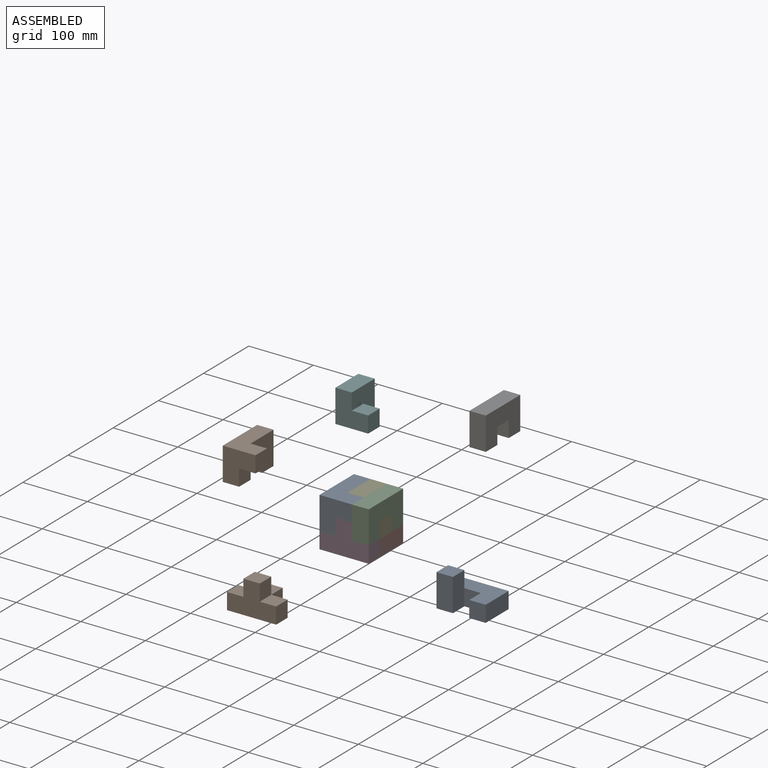
[diagram: assembled view]
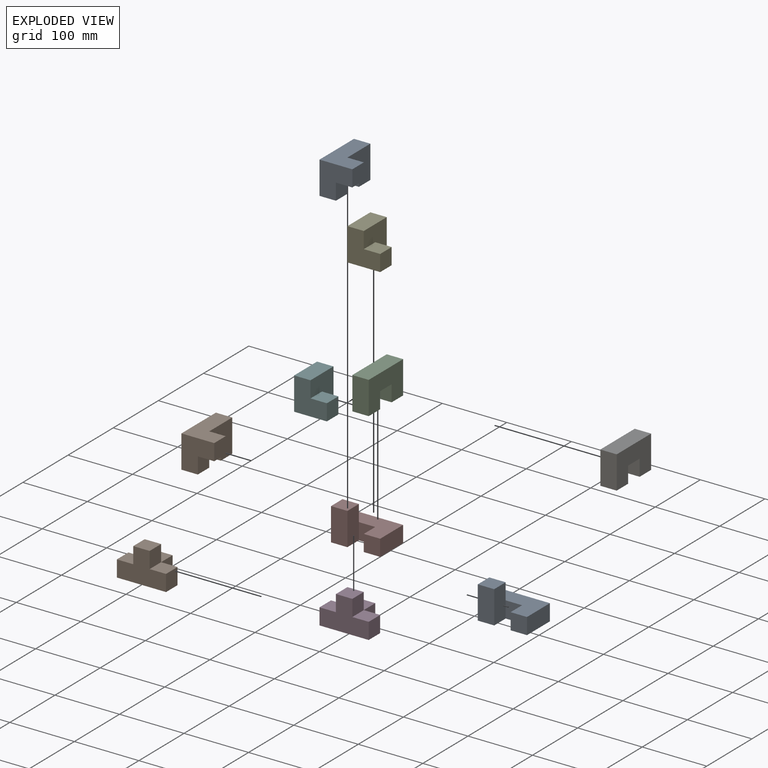
[diagram: exploded view]
GUIDED TOUR — MATED ASSEMBLY (Onshape document b83638dbb1ead9b3915cd865, AutoMate assembly b83638dbb1ead9b3915cd865_62fa5bdd0d1fef574d2ae65a_17d35a846d74b844c193dc2c_default)

This assembly has 10 components, labeled P0..P9 below (a component is one placed occurrence of a part; the same part can appear more than once), held together by 4 mates. A mate is a constraint between two components; its type names the relative motion it leaves free:
  FASTENED — locks the two components together rigidly (no relative motion).
Axis/direction vectors are unit vectors and 'through' points are millimeter coordinates, both in the assembly's world frame.

MATES
  1. FASTENED "Fastened 4": P4 <-> P7, direction (0.000, 0.000, -1.000) through (41.10, -124.55, -43.02) mm
  2. FASTENED "Fastened 3": P2 <-> P3, direction (0.000, 0.000, -1.000) through (28.40, -137.25, -43.02) mm
  3. FASTENED "Fastened 2": P0 <-> P7, direction (0.000, 0.000, -1.000) through (-22.40, -111.85, -17.62) mm
  4. FASTENED "Fastened 1": P7 <-> P3, direction (0.000, -1.000, 0.000) through (3.00, -99.15, -55.72) mm

ASSEMBLY ORDER
  1. P7 — the base component [order heuristic]
  2. P3 [order verified]
  3. P4 — core [order heuristic]
  4. P2 — core [order heuristic]
  5. P0 — core [order heuristic]
  6. P9 [order verified]
  7. P8 [order verified]
  8. P5 [order verified]
  9. P6 [order verified]
  10. P1 [order verified]
Order-tag legend:
  [order verified] — this step's position reverses a verified removal order: the component was checked to insert without passing through the ones already placed.
  [order heuristic] — the first 4 components form the assembly's core: parts whose collision-free extraction could not be verified, listed in mate-graph order.

Of the 10 components, 8 carry the full construction recipe — the FeatureScript program that regenerates the part's solid from scratch; the rest are supplied as boundary geometry only.
Each toured component is shown spotlighted twice — in the assembled view, then in the exploded view, where a leader line traces a displaced component back to its assembled socket (saturated green if recipe-attached, orange if geometry-only; every other component desaturated gray) — followed by its recipe or geometry summary and the mates that hold it.
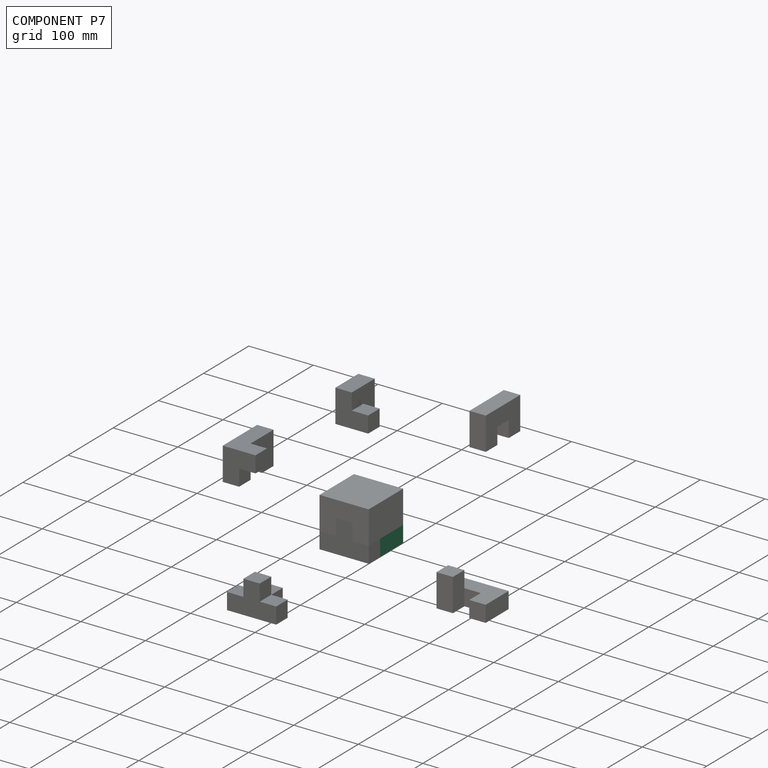
[diagram: component P7 — assembled]
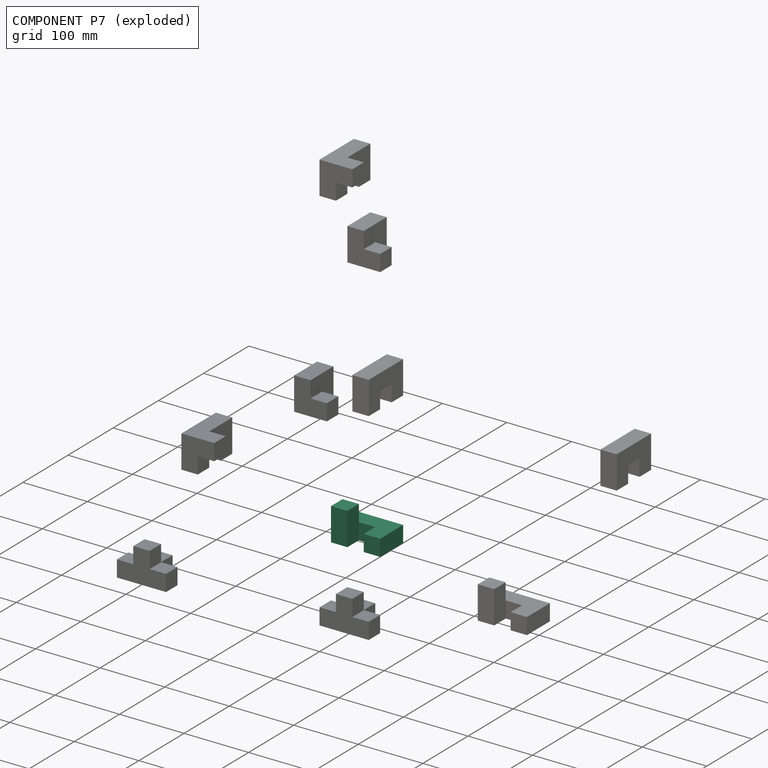
[diagram: component P7 — exploded]
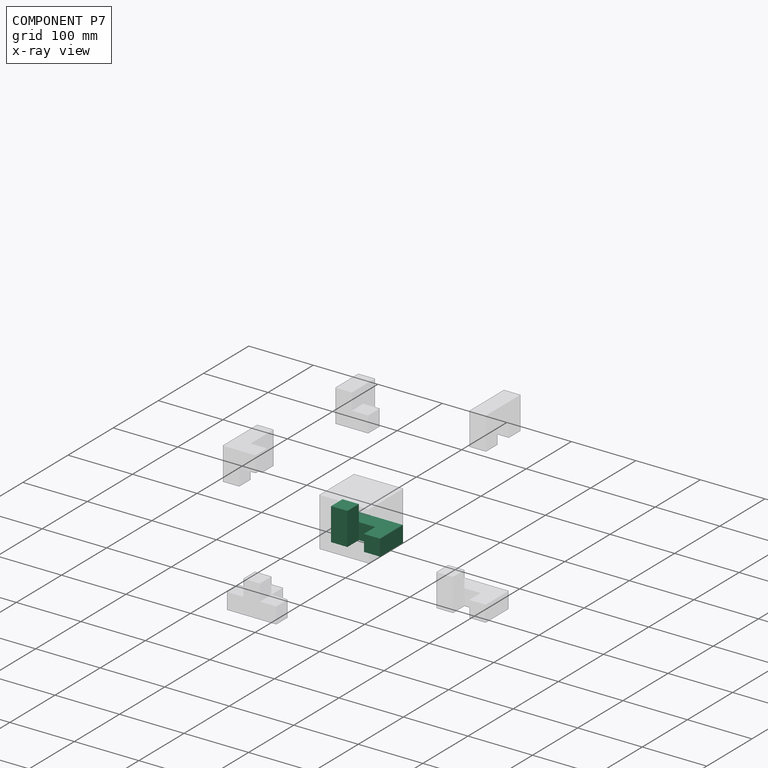
[diagram: component P7 — x-ray view]
COMPONENT P7 — recipe-attached (CADFS 00277339, mesh-verified: the recipe's output STEP matches this component's geometry to below the mesh-comparison resolution (tessellation chordal tolerance ~0.157 mm)).
Held by: FASTENED mate "Fastened 4" to P4; FASTENED mate "Fastened 2" to P0; FASTENED mate "Fastened 1" to P3.
Construction recipe (FeatureScript — the CAD program that rebuilds this solid; sketch coordinates are in the units given by the * unit suffixes, e.g. mm):

FeatureScript 1511;
import(path : "onshape/std/geometry.fs", version : "1511.0");
import(path : "onshape/std/common.fs", version : "1511.0");
const mm = millimeter;
const VERTEX = EntityType.VERTEX;
const EDGE = EntityType.EDGE;
const FACE = EntityType.FACE;
const BODY = EntityType.BODY;
function v(x, y){return vector(x, y);}
function OD(order){return orderDisambiguation(order);}
function OSD(set){return originalSetDisambiguation(set);}
function TD(topology){return topologyDisambiguation(topology);}
function TDD(query){return trueDependencyDisambiguation(query);}
function sQuery(a, b, c) {return sketchEntityQuery(a, b, c);}

annotation { "Feature Type Name" : "Feature", "Feature Type Description" : "" }
export const myFeature = defineFeature(function(context is Context, id is Id, definition is map)
    precondition{}
    {
        {
            var Q0;
            Q0=qCreatedBy(makeId("Front.planeOp"),FACE);
            var sketch = newSketch(context, id + "F0", { "sketchPlane" : qUnion([Q0])});
            skLineSegment(sketch, "E0", {"start": v(-39.31, -20.07) * mm, "end": v(-13.91, -20.07) * mm});
            skLineSegment(sketch, "E1", {"start": v(-13.91, -20.07) * mm, "end": v(11.49, -20.07) * mm});
            skLineSegment(sketch, "E2", {"start": v(11.49, -20.07) * mm, "end": v(36.89, -20.07) * mm});
            skLineSegment(sketch, "E3", {"start": v(36.89, -20.07) * mm, "end": v(36.89, 5.33) * mm});
            skLineSegment(sketch, "E4", {"start": v(36.89, 5.33) * mm, "end": v(11.49, 5.33) * mm});
            skLineSegment(sketch, "E5", {"start": v(11.49, 5.33) * mm, "end": v(-13.91, 5.33) * mm});
            skLineSegment(sketch, "E6", {"start": v(-13.91, 5.33) * mm, "end": v(-39.31, 5.33) * mm});
            skLineSegment(sketch, "E7", {"start": v(-39.31, 5.33) * mm, "end": v(-39.31, -20.07) * mm});
            skLineSegment(sketch, "E8", {"start": v(-13.91, 5.33) * mm, "end": v(-13.91, -20.07) * mm});
            skLineSegment(sketch, "E9", {"start": v(11.49, 5.33) * mm, "end": v(11.49, -20.07) * mm});
            skSolve(sketch);
        }
        {
            var Q0;
            Q0=makeQuery(id+"F0.imprint","IMPRINT",FACE,{"disambiguationData":[TD([[makeQuery(id+"F0.imprint","IMPRINT",EDGE,{"derivedFrom":sQuery(id+"F0.wireOp",EDGE,"E1")}),1.0]])]});
            extrude(context, id + "F1", {"entities" : qUnion([Q0]), "depth" : 25.4 * mm});
        }
        {
            var Q0;
            Q0=makeQuery(id+"F0.imprint","IMPRINT",FACE,{"disambiguationData":[TD([[makeQuery(id+"F0.imprint","IMPRINT",EDGE,{"derivedFrom":sQuery(id+"F0.wireOp",EDGE,"E0")}),1.0]])]});
            var Q1;
            Q1=makeQuery(id+"F0.imprint","IMPRINT",FACE,{"disambiguationData":[TD([[makeQuery(id+"F0.imprint","IMPRINT",EDGE,{"derivedFrom":sQuery(id+"F0.wireOp",EDGE,"E2")}),1.0]])]});
            extrude(context, id + "F2", {"entities" : qUnion([Q0, Q1]), "operationType" : NewBodyOperationType.ADD, "depth" : 50.8 * mm});
        }
        {
            var Q0;
            Q0=makeQuery(id+"F2.boolean.opBoolean","MERGE",FACE,{"derivedFrom":[makeQuery(id+"F1.opExtrude","SWEPT_FACE",FACE,{"disambiguationData":[OSD([sQuery(id+"F0.wireOp",EDGE,"E5")])]}),makeQuery(id+"F2.opExtrude","SWEPT_FACE",FACE,{"disambiguationData":[OSD([sQuery(id+"F0.wireOp",EDGE,"E4")])]}),makeQuery(id+"F2.opExtrude","SWEPT_FACE",FACE,{"disambiguationData":[OSD([sQuery(id+"F0.wireOp",EDGE,"E6")])]})]});
            var sketch = newSketch(context, id + "F3", { "sketchPlane" : qUnion([Q0])});
            skLineSegment(sketch, "E10.bottom", {"start": v(-13.91, -50.8) * mm, "end": v(-39.31, -50.8) * mm});
            skLineSegment(sketch, "E10.top", {"start": v(-13.91, -25.4) * mm, "end": v(-39.31, -25.4) * mm});
            skLineSegment(sketch, "E10.left", {"start": v(-13.91, -50.8) * mm, "end": v(-13.91, -25.4) * mm});
            skLineSegment(sketch, "E10.right", {"start": v(-39.31, -50.8) * mm, "end": v(-39.31, -25.4) * mm});
            skSolve(sketch);
        }
        {
            var Q0;
            Q0 = qSketchRegion(id + "F3", true);
            extrude(context, id + "F4", {"entities" : qUnion([Q0]), "operationType" : NewBodyOperationType.ADD, "depth" : 25.4 * mm});
        }
    });
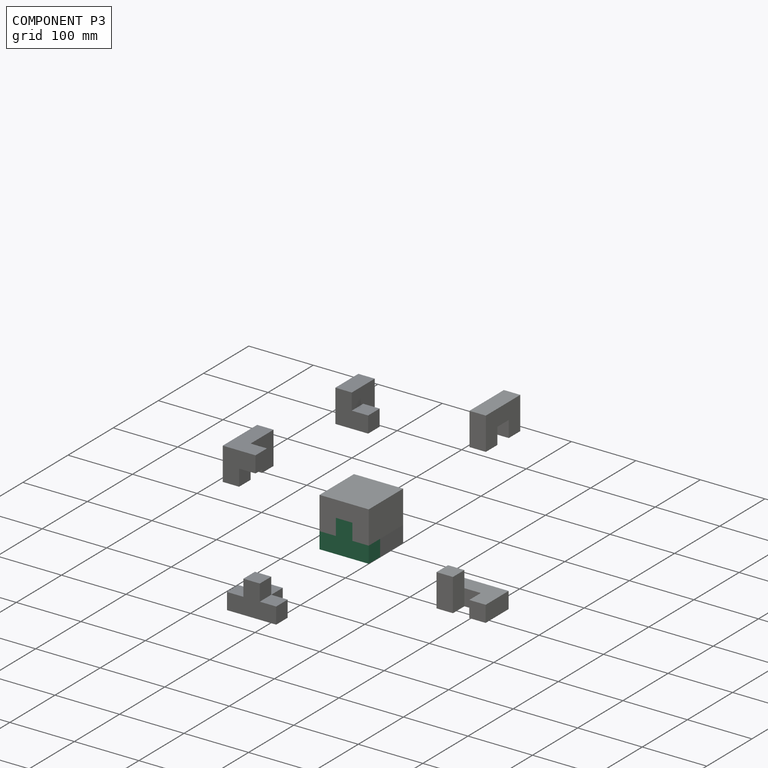
[diagram: component P3 — assembled]
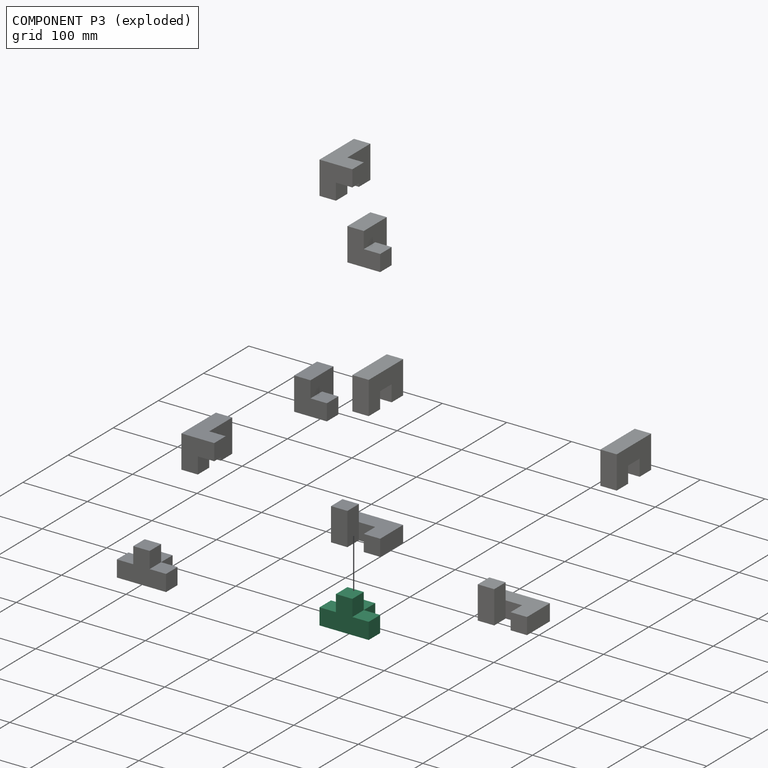
[diagram: component P3 — exploded]
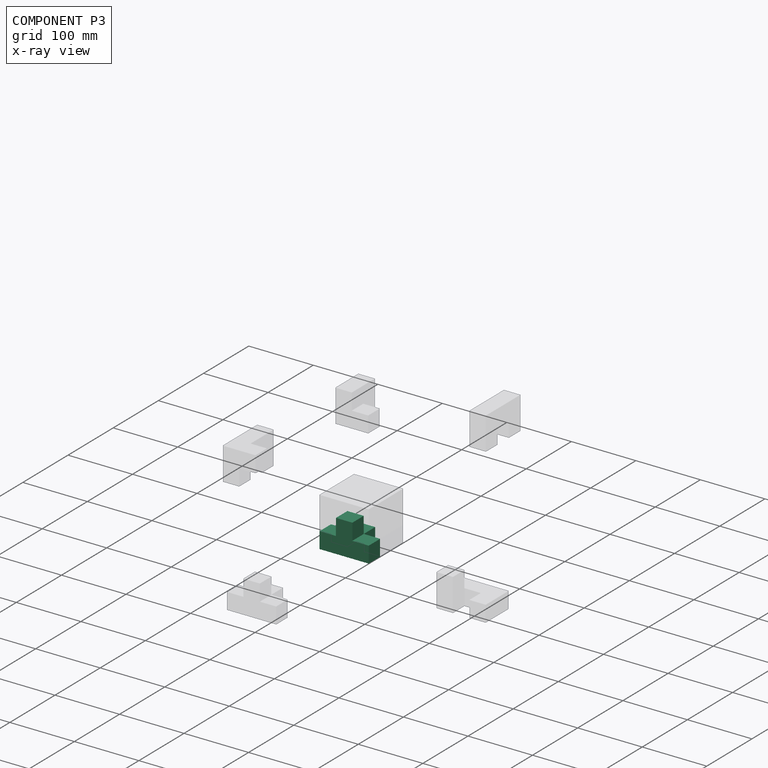
[diagram: component P3 — x-ray view]
COMPONENT P3 — recipe-attached (CADFS 00277338, mesh-verified: the recipe's output STEP matches this component's geometry to below the mesh-comparison resolution (tessellation chordal tolerance ~0.157 mm)).
Held by: FASTENED mate "Fastened 3" to P2; FASTENED mate "Fastened 1" to P7.
Construction recipe (FeatureScript — the CAD program that rebuilds this solid; sketch coordinates are in the units given by the * unit suffixes, e.g. mm):

FeatureScript 1511;
import(path : "onshape/std/geometry.fs", version : "1511.0");
import(path : "onshape/std/common.fs", version : "1511.0");
const mm = millimeter;
const VERTEX = EntityType.VERTEX;
const EDGE = EntityType.EDGE;
const FACE = EntityType.FACE;
const BODY = EntityType.BODY;
function v(x, y){return vector(x, y);}
function OD(order){return orderDisambiguation(order);}
function OSD(set){return originalSetDisambiguation(set);}
function TD(topology){return topologyDisambiguation(topology);}
function TDD(query){return trueDependencyDisambiguation(query);}
function sQuery(a, b, c) {return sketchEntityQuery(a, b, c);}

annotation { "Feature Type Name" : "Feature", "Feature Type Description" : "" }
export const myFeature = defineFeature(function(context is Context, id is Id, definition is map)
    precondition{}
    {
        {
            var Q0;
            Q0=qCreatedBy(makeId("Front.planeOp"),FACE);
            var sketch = newSketch(context, id + "F0", { "sketchPlane" : qUnion([Q0])});
            skLineSegment(sketch, "E0", {"start": v(-40.88, -20.26) * mm, "end": v(-15.48, -20.26) * mm});
            skLineSegment(sketch, "E1", {"start": v(-15.48, -20.26) * mm, "end": v(9.92, -20.26) * mm});
            skLineSegment(sketch, "E2", {"start": v(9.92, -20.26) * mm, "end": v(35.32, -20.26) * mm});
            skLineSegment(sketch, "E3", {"start": v(35.32, -20.26) * mm, "end": v(35.32, 5.14) * mm});
            skLineSegment(sketch, "E4", {"start": v(35.32, 5.14) * mm, "end": v(9.92, 5.14) * mm});
            skLineSegment(sketch, "E5", {"start": v(9.92, 5.14) * mm, "end": v(-15.48, 5.14) * mm});
            skLineSegment(sketch, "E6", {"start": v(-15.48, 5.14) * mm, "end": v(-40.88, 5.14) * mm});
            skLineSegment(sketch, "E7", {"start": v(-40.88, 5.14) * mm, "end": v(-40.88, -20.26) * mm});
            skLineSegment(sketch, "E8", {"start": v(-15.48, 5.14) * mm, "end": v(-15.48, 30.54) * mm});
            skLineSegment(sketch, "E9", {"start": v(-15.48, 30.54) * mm, "end": v(9.92, 30.54) * mm});
            skLineSegment(sketch, "E10", {"start": v(9.92, 30.54) * mm, "end": v(9.92, 5.14) * mm});
            skLineSegment(sketch, "E11", {"start": v(9.92, 5.14) * mm, "end": v(9.92, -20.26) * mm});
            skLineSegment(sketch, "E12", {"start": v(-15.48, 5.14) * mm, "end": v(-15.48, -20.26) * mm});
            skSolve(sketch);
        }
        {
            var Q0;
            Q0=makeQuery(id+"F0.imprint","IMPRINT",FACE,{"disambiguationData":[TD([[makeQuery(id+"F0.imprint","IMPRINT",EDGE,{"derivedFrom":sQuery(id+"F0.wireOp",EDGE,"E1")}),1.0]])]});
            extrude(context, id + "F1", {"entities" : qUnion([Q0]), "depth" : 50.8 * mm});
        }
        {
            var Q0;
            Q0=makeQuery(id+"F0.imprint","IMPRINT",FACE,{"disambiguationData":[TD([[makeQuery(id+"F0.imprint","IMPRINT",EDGE,{"derivedFrom":sQuery(id+"F0.wireOp",EDGE,"E0")}),1.0]])]});
            var Q1;
            Q1=makeQuery(id+"F0.imprint","IMPRINT",FACE,{"disambiguationData":[TD([[makeQuery(id+"F0.imprint","IMPRINT",EDGE,{"derivedFrom":sQuery(id+"F0.wireOp",EDGE,"E5")}),-1.0]])]});
            var Q2;
            Q2=makeQuery(id+"F0.imprint","IMPRINT",FACE,{"disambiguationData":[TD([[makeQuery(id+"F0.imprint","IMPRINT",EDGE,{"derivedFrom":sQuery(id+"F0.wireOp",EDGE,"E2")}),1.0]])]});
            extrude(context, id + "F2", {"entities" : qUnion([Q0, Q1, Q2]), "operationType" : NewBodyOperationType.ADD, "depth" : 25.4 * mm});
        }
    });
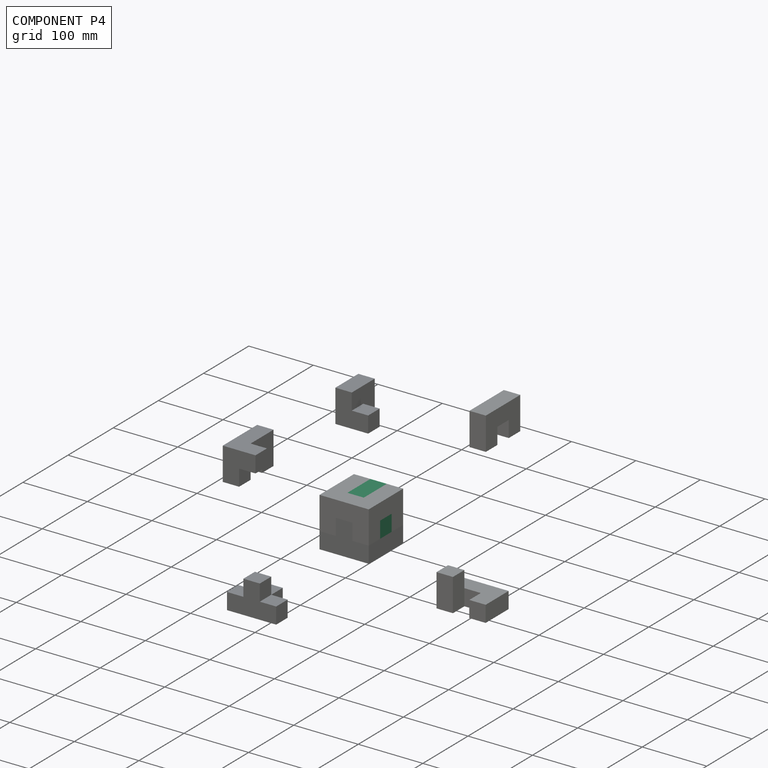
[diagram: component P4 — assembled]
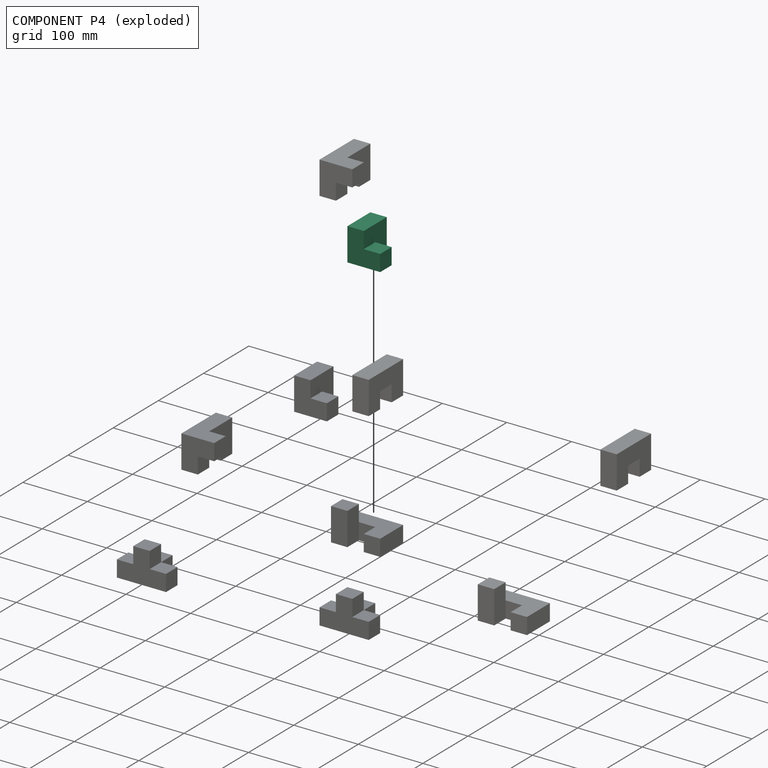
[diagram: component P4 — exploded]
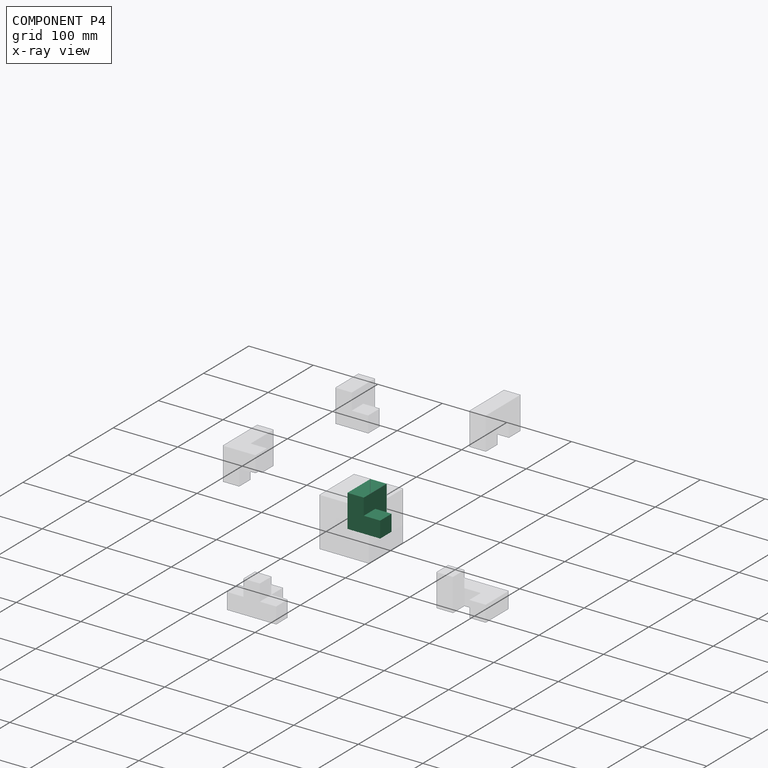
[diagram: component P4 — x-ray view]
COMPONENT P4 — recipe-attached (CADFS 00277341, mesh-verified: the recipe's output STEP matches this component's geometry to below the mesh-comparison resolution (tessellation chordal tolerance ~0.132 mm)).
Held by: FASTENED mate "Fastened 4" to P7.
Construction recipe (FeatureScript — the CAD program that rebuilds this solid; sketch coordinates are in the units given by the * unit suffixes, e.g. mm):

FeatureScript 1511;
import(path : "onshape/std/geometry.fs", version : "1511.0");
import(path : "onshape/std/common.fs", version : "1511.0");
const mm = millimeter;
const VERTEX = EntityType.VERTEX;
const EDGE = EntityType.EDGE;
const FACE = EntityType.FACE;
const BODY = EntityType.BODY;
function v(x, y){return vector(x, y);}
function OD(order){return orderDisambiguation(order);}
function OSD(set){return originalSetDisambiguation(set);}
function TD(topology){return topologyDisambiguation(topology);}
function TDD(query){return trueDependencyDisambiguation(query);}
function sQuery(a, b, c) {return sketchEntityQuery(a, b, c);}

annotation { "Feature Type Name" : "Feature", "Feature Type Description" : "" }
export const myFeature = defineFeature(function(context is Context, id is Id, definition is map)
    precondition{}
    {
        {
            var Q0;
            Q0=qCreatedBy(makeId("Front.planeOp"),FACE);
            var sketch = newSketch(context, id + "F0", { "sketchPlane" : qUnion([Q0])});
            skLineSegment(sketch, "E0.bottom", {"start": v(-53.4, -45.15) * mm, "end": v(-28, -45.15) * mm});
            skLineSegment(sketch, "E0.top", {"start": v(-53.4, -70.55) * mm, "end": v(-28, -70.55) * mm});
            skLineSegment(sketch, "E0.left", {"start": v(-53.4, -45.15) * mm, "end": v(-53.4, -70.55) * mm});
            skLineSegment(sketch, "E0.right", {"start": v(-28, -45.15) * mm, "end": v(-28, -70.55) * mm});
            skSolve(sketch);
        }
        {
            var Q0;
            Q0 = qSketchRegion(id + "F0", true);
            extrude(context, id + "F1", {"entities" : qUnion([Q0]), "depth" : 50.8 * mm});
        }
        {
            var Q0;
            Q0=makeQuery(id+"F1.opExtrude","SWEPT_FACE",FACE,{"disambiguationData":[OSD([sQuery(id+"F0.wireOp",EDGE,"E0.bottom")])]});
            var sketch = newSketch(context, id + "F2", { "sketchPlane" : qUnion([Q0])});
            skLineSegment(sketch, "E1.bottom", {"start": v(-53.4, 0) * mm, "end": v(-28, 0) * mm});
            skLineSegment(sketch, "E1.top", {"start": v(-53.4, -25.4) * mm, "end": v(-28, -25.4) * mm});
            skLineSegment(sketch, "E1.left", {"start": v(-53.4, 0) * mm, "end": v(-53.4, -25.4) * mm});
            skLineSegment(sketch, "E1.right", {"start": v(-28, 0) * mm, "end": v(-28, -25.4) * mm});
            skSolve(sketch);
        }
        {
            var Q0;
            Q0 = qSketchRegion(id + "F2", true);
            extrude(context, id + "F3", {"entities" : qUnion([Q0]), "operationType" : NewBodyOperationType.ADD, "depth" : 25.4 * mm});
        }
        {
            var Q0;
            Q0=makeQuery(id+"F3.boolean.opBoolean","MERGE",FACE,{"derivedFrom":[makeQuery(id+"F1.opExtrude","SWEPT_FACE",FACE,{"disambiguationData":[OSD([sQuery(id+"F0.wireOp",EDGE,"E0.right")])]}),makeQuery(id+"F3.opExtrude","SWEPT_FACE",FACE,{"disambiguationData":[OSD([sQuery(id+"F2.wireOp",EDGE,"E1.right")])]})]});
            var sketch = newSketch(context, id + "F4", { "sketchPlane" : qUnion([Q0])});
            skLineSegment(sketch, "E2.bottom", {"start": v(-25.4, -19.75) * mm, "end": v(0, -19.75) * mm});
            skLineSegment(sketch, "E2.top", {"start": v(-25.4, -70.55) * mm, "end": v(0, -70.55) * mm});
            skLineSegment(sketch, "E2.left", {"start": v(-25.4, -19.75) * mm, "end": v(-25.4, -70.55) * mm});
            skLineSegment(sketch, "E2.right", {"start": v(0, -19.75) * mm, "end": v(0, -70.55) * mm});
            skSolve(sketch);
        }
        {
            var Q0;
            Q0 = qSketchRegion(id + "F4", true);
            extrude(context, id + "F5", {"entities" : qUnion([Q0]), "operationType" : NewBodyOperationType.ADD, "depth" : 25.4 * mm});
        }
    });
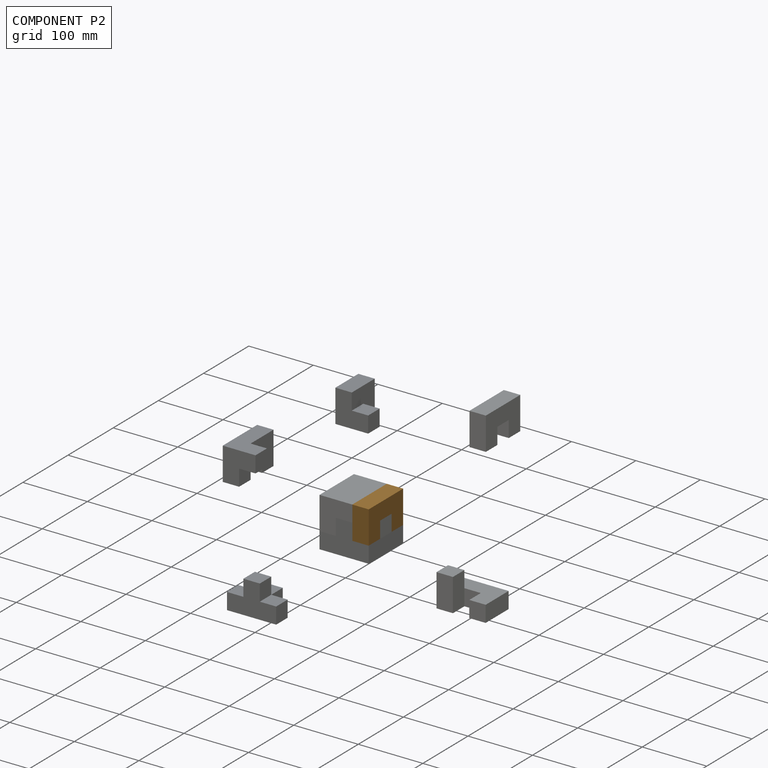
[diagram: component P2 — assembled]
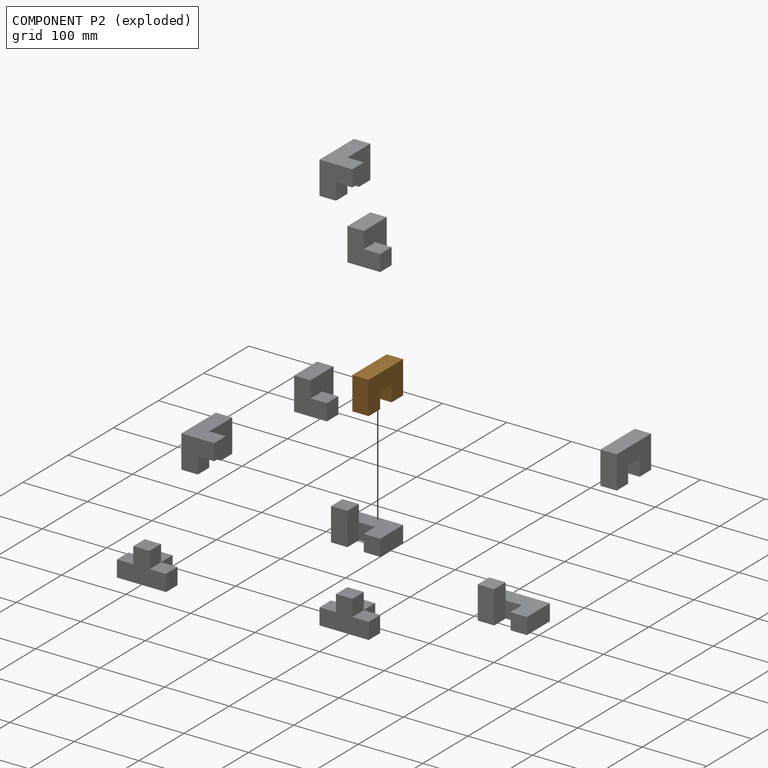
[diagram: component P2 — exploded]
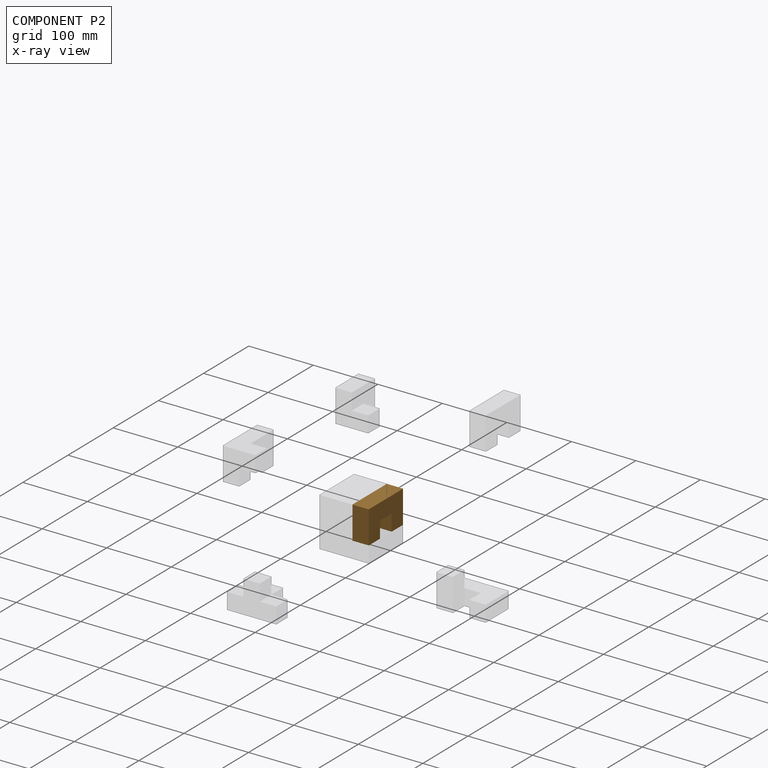
[diagram: component P2 — x-ray view]
COMPONENT P2 — geometry summary (no construction recipe available for this part):
  bounding box: 76.2 x 50.8 x 25.4 mm
  B-rep topology: 1 solid, 10 faces, 48 edges
  volume: 81935 mm^3 (83% of its bounding box)
  symmetry: 2-fold rotationally symmetric about the y axis; mirror-symmetric across its x mid-plane, z mid-plane
Held by: FASTENED mate "Fastened 3" to P3.
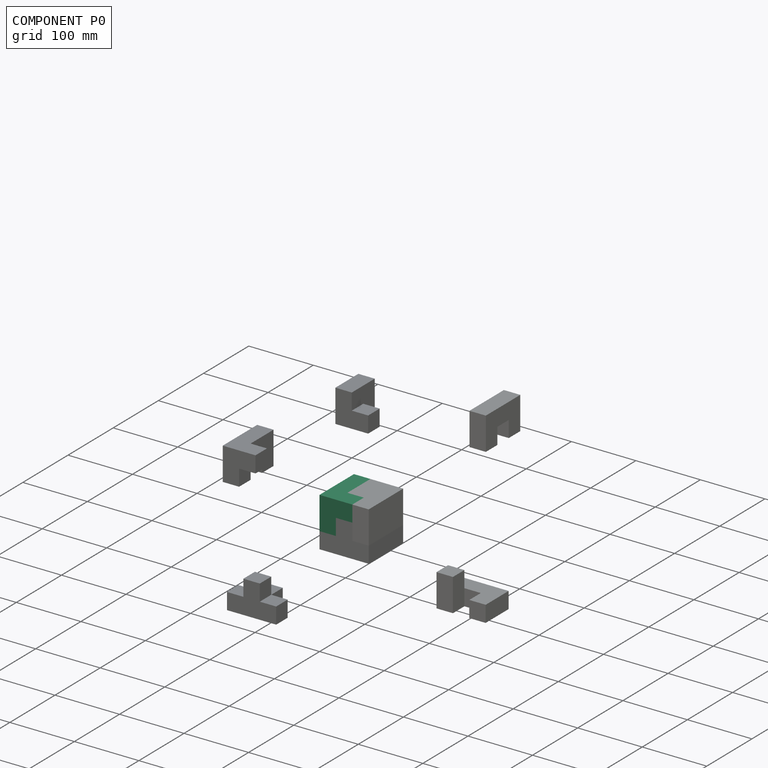
[diagram: component P0 — assembled]
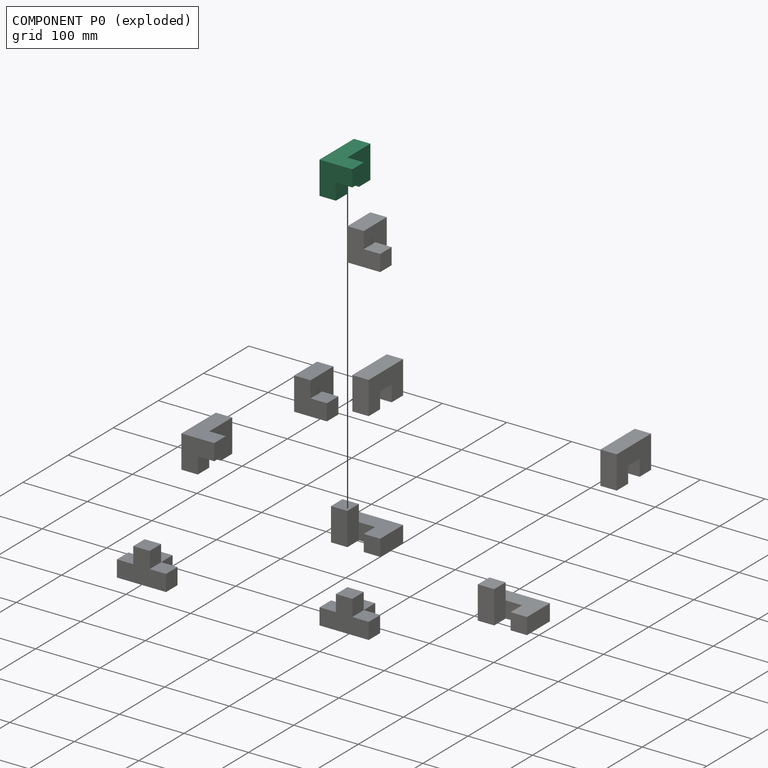
[diagram: component P0 — exploded]
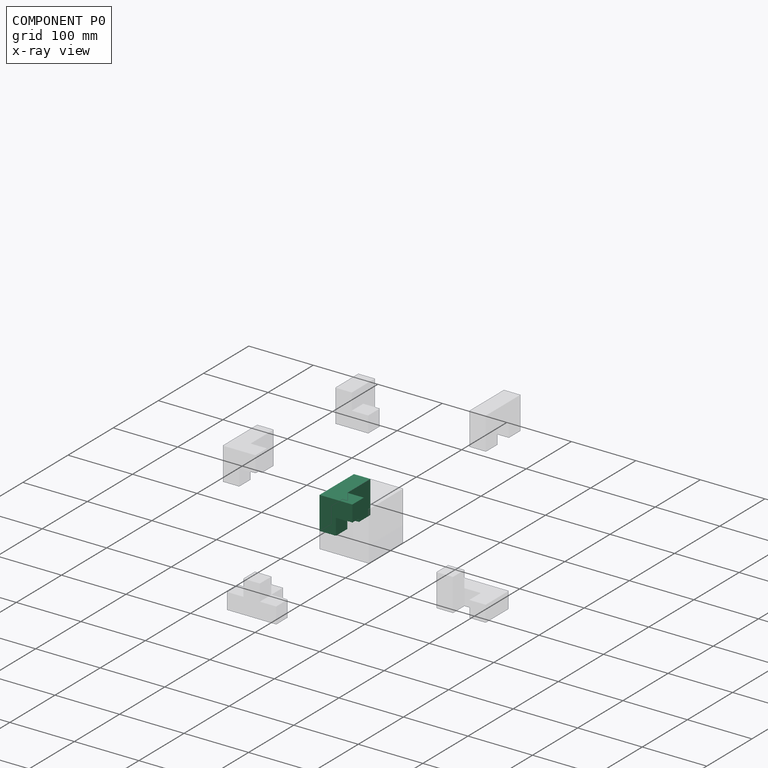
[diagram: component P0 — x-ray view]
COMPONENT P0 — recipe-attached (CADFS 00277340, mesh-verified: the recipe's output STEP matches this component's geometry to below the mesh-comparison resolution (tessellation chordal tolerance ~0.157 mm)).
Held by: FASTENED mate "Fastened 2" to P7.
Construction recipe (FeatureScript — the CAD program that rebuilds this solid; sketch coordinates are in the units given by the * unit suffixes, e.g. mm):

FeatureScript 1511;
import(path : "onshape/std/geometry.fs", version : "1511.0");
import(path : "onshape/std/common.fs", version : "1511.0");
const mm = millimeter;
const VERTEX = EntityType.VERTEX;
const EDGE = EntityType.EDGE;
const FACE = EntityType.FACE;
const BODY = EntityType.BODY;
function v(x, y){return vector(x, y);}
function OD(order){return orderDisambiguation(order);}
function OSD(set){return originalSetDisambiguation(set);}
function TD(topology){return topologyDisambiguation(topology);}
function TDD(query){return trueDependencyDisambiguation(query);}
function sQuery(a, b, c) {return sketchEntityQuery(a, b, c);}

annotation { "Feature Type Name" : "Feature", "Feature Type Description" : "" }
export const myFeature = defineFeature(function(context is Context, id is Id, definition is map)
    precondition{}
    {
        {
            var Q0;
            Q0=qCreatedBy(makeId("Front.planeOp"),FACE);
            var sketch = newSketch(context, id + "F0", { "sketchPlane" : qUnion([Q0])});
            skLineSegment(sketch, "E0", {"start": v(-40.4, -30.37) * mm, "end": v(-15, -30.37) * mm});
            skLineSegment(sketch, "E1", {"start": v(-15, -30.37) * mm, "end": v(10.4, -30.37) * mm});
            skLineSegment(sketch, "E2", {"start": v(10.4, -30.37) * mm, "end": v(35.8, -30.37) * mm});
            skLineSegment(sketch, "E3", {"start": v(35.8, -30.37) * mm, "end": v(35.8, -4.97) * mm});
            skLineSegment(sketch, "E4", {"start": v(35.8, -4.97) * mm, "end": v(10.4, -4.97) * mm});
            skLineSegment(sketch, "E5", {"start": v(10.4, -4.97) * mm, "end": v(-15, -4.97) * mm});
            skLineSegment(sketch, "E6", {"start": v(-15, -4.97) * mm, "end": v(-40.4, -4.97) * mm});
            skLineSegment(sketch, "E7", {"start": v(-40.4, -4.97) * mm, "end": v(-40.4, -30.37) * mm});
            skLineSegment(sketch, "E8", {"start": v(-40.4, -4.97) * mm, "end": v(-40.4, 20.43) * mm});
            skLineSegment(sketch, "E9", {"start": v(-40.4, 20.43) * mm, "end": v(-15, 20.43) * mm});
            skLineSegment(sketch, "E10", {"start": v(-15, 20.43) * mm, "end": v(-15, -4.97) * mm});
            skLineSegment(sketch, "E11", {"start": v(10.4, -4.97) * mm, "end": v(10.4, 20.43) * mm});
            skLineSegment(sketch, "E12", {"start": v(10.4, 20.43) * mm, "end": v(35.8, 20.43) * mm});
            skLineSegment(sketch, "E13", {"start": v(35.8, 20.43) * mm, "end": v(35.8, -4.97) * mm});
            skLineSegment(sketch, "E14", {"start": v(10.4, -4.97) * mm, "end": v(10.4, -30.37) * mm});
            skLineSegment(sketch, "E15", {"start": v(-15, -4.97) * mm, "end": v(-15, -30.37) * mm});
            skSolve(sketch);
        }
        {
            var Q0;
            Q0=makeQuery(id+"F0.imprint","IMPRINT",FACE,{"disambiguationData":[TD([[makeQuery(id+"F0.imprint","IMPRINT",EDGE,{"derivedFrom":sQuery(id+"F0.wireOp",EDGE,"E2")}),1.0]])]});
            extrude(context, id + "F1", {"entities" : qUnion([Q0]), "depth" : 50.8 * mm});
        }
        {
            var Q0;
            Q0=makeQuery(id+"F0.imprint","IMPRINT",FACE,{"disambiguationData":[TD([[makeQuery(id+"F0.imprint","IMPRINT",EDGE,{"derivedFrom":sQuery(id+"F0.wireOp",EDGE,"E4")}),-1.0]])]});
            var Q1;
            Q1=makeQuery(id+"F0.imprint","IMPRINT",FACE,{"disambiguationData":[TD([[makeQuery(id+"F0.imprint","IMPRINT",EDGE,{"derivedFrom":sQuery(id+"F0.wireOp",EDGE,"E1")}),1.0]])]});
            var Q2;
            Q2=makeQuery(id+"F0.imprint","IMPRINT",FACE,{"disambiguationData":[TD([[makeQuery(id+"F0.imprint","IMPRINT",EDGE,{"derivedFrom":sQuery(id+"F0.wireOp",EDGE,"E0")}),1.0]])]});
            var Q3;
            Q3=makeQuery(id+"F0.imprint","IMPRINT",FACE,{"disambiguationData":[TD([[makeQuery(id+"F0.imprint","IMPRINT",EDGE,{"derivedFrom":sQuery(id+"F0.wireOp",EDGE,"E6")}),-1.0]])]});
            extrude(context, id + "F2", {"entities" : qUnion([Q0, Q1, Q2, Q3]), "operationType" : NewBodyOperationType.ADD, "depth" : 25.4 * mm});
        }
    });
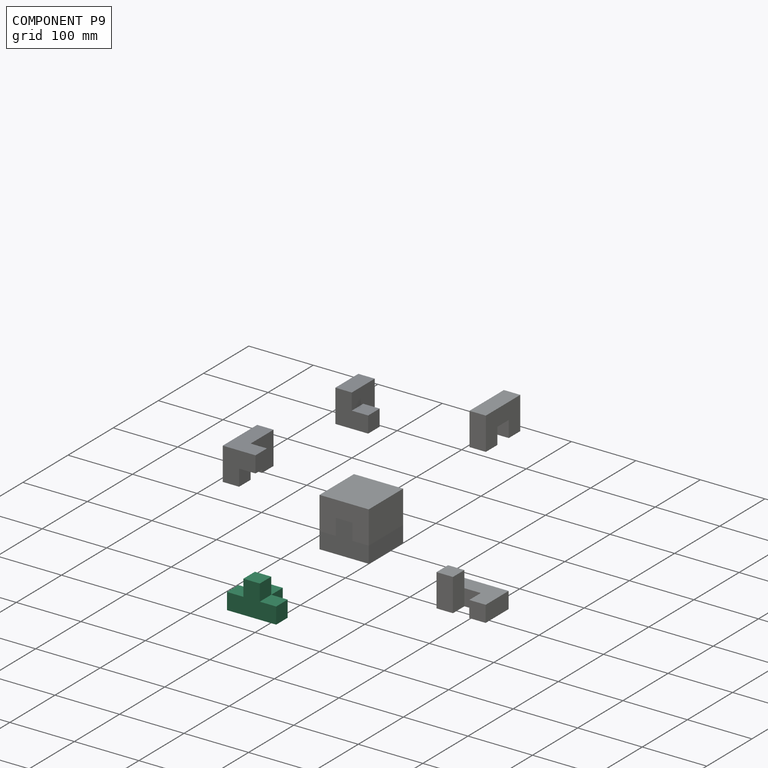
[diagram: component P9 — assembled]
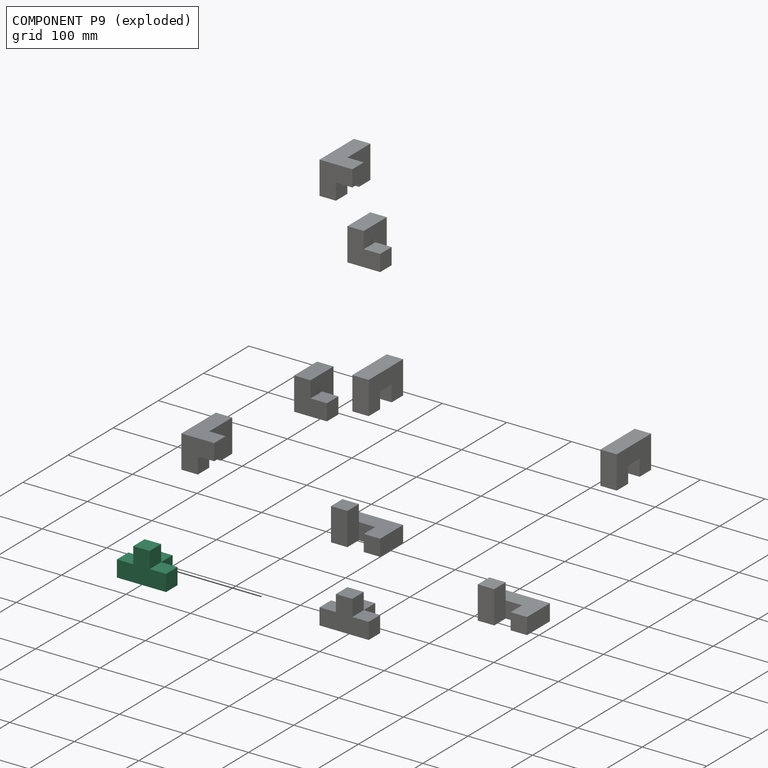
[diagram: component P9 — exploded]
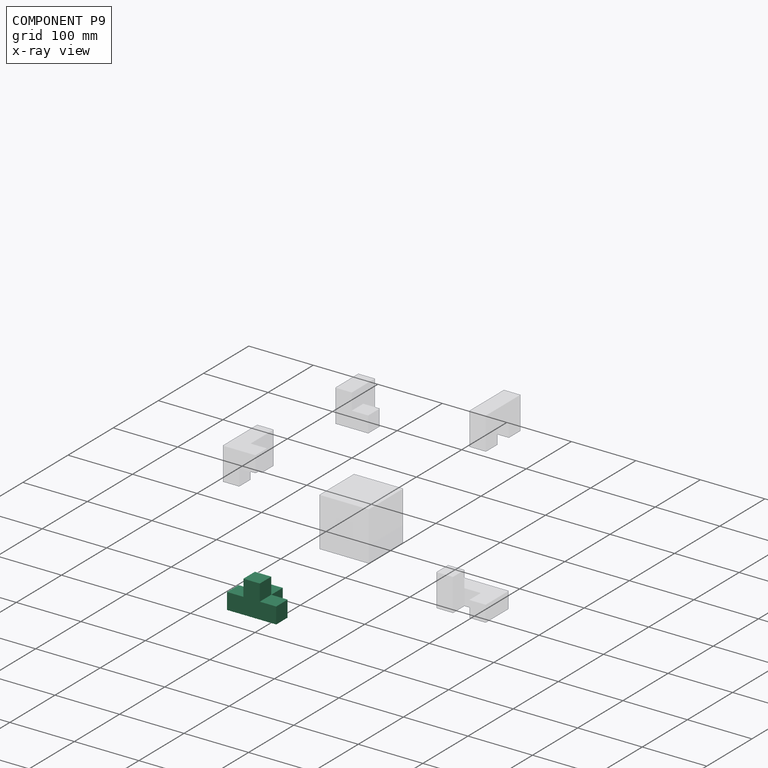
[diagram: component P9 — x-ray view]
COMPONENT P9 — same part as P3 (CADFS 00277338); its construction recipe is shown at P3.
Held by: no mates (free).
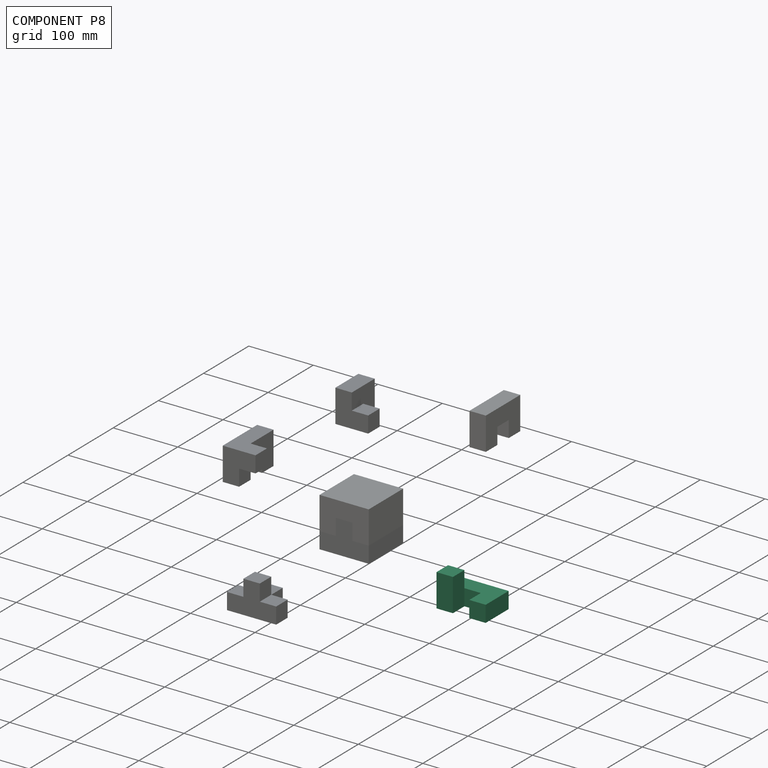
[diagram: component P8 — assembled]
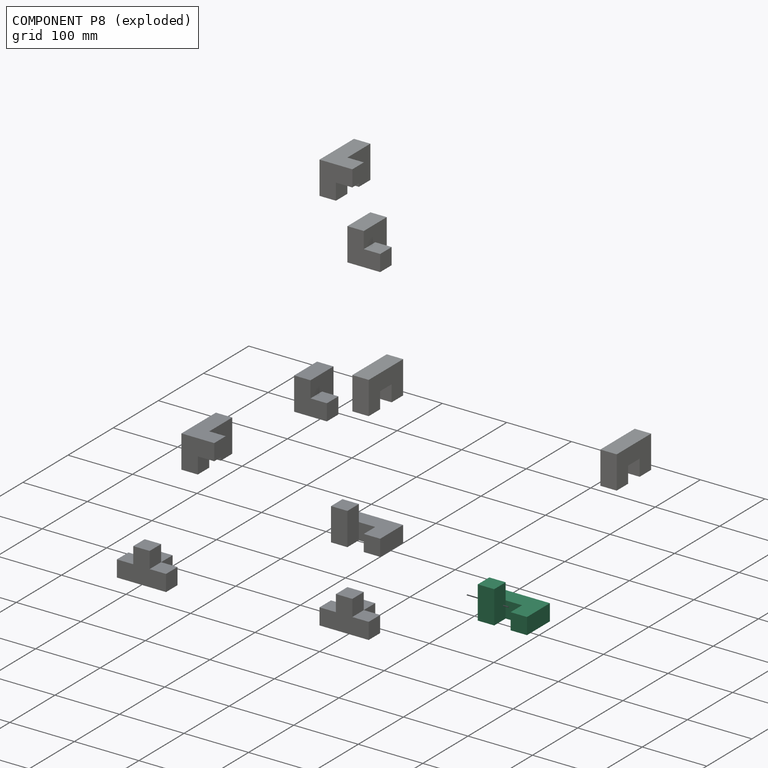
[diagram: component P8 — exploded]
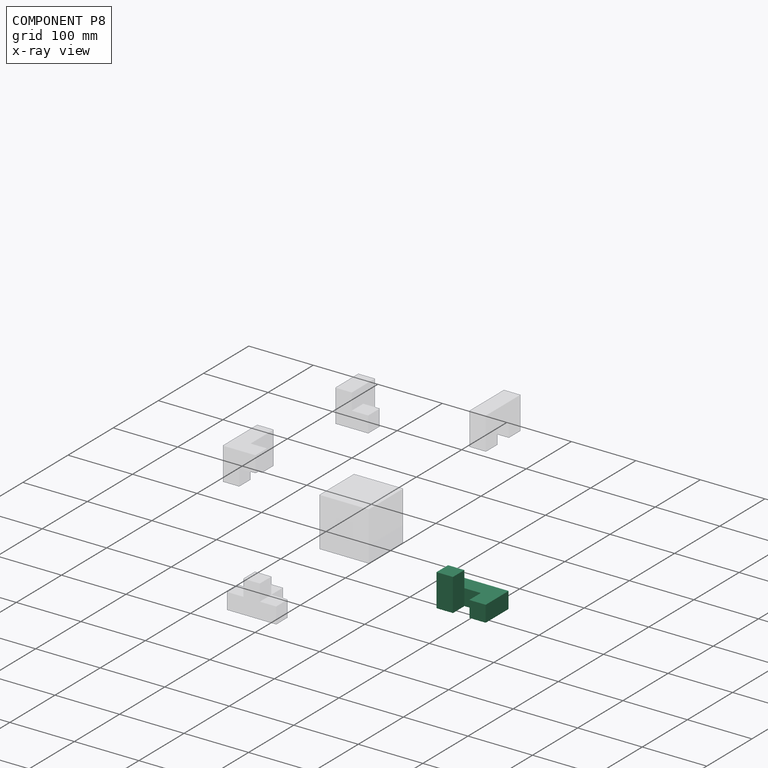
[diagram: component P8 — x-ray view]
COMPONENT P8 — same part as P7 (CADFS 00277339); its construction recipe is shown at P7.
Held by: no mates (free).
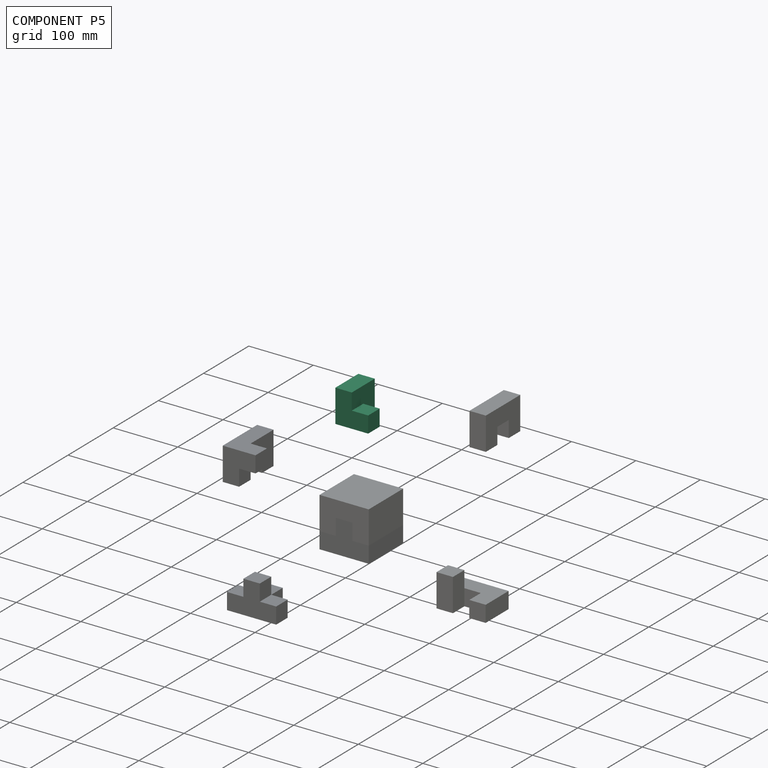
[diagram: component P5 — assembled]
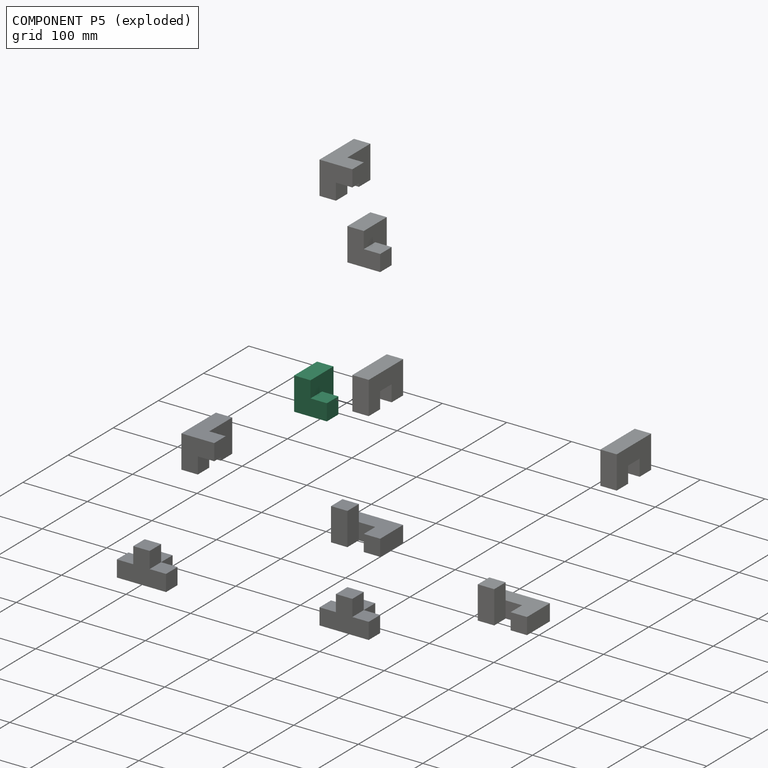
[diagram: component P5 — exploded]
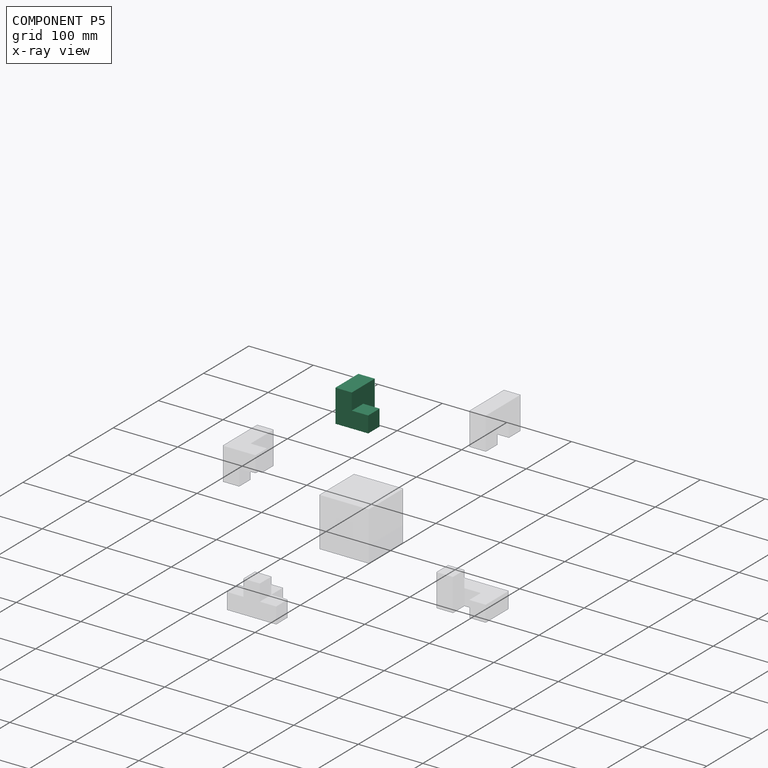
[diagram: component P5 — x-ray view]
COMPONENT P5 — same part as P4 (CADFS 00277341); its construction recipe is shown at P4.
Held by: no mates (free).
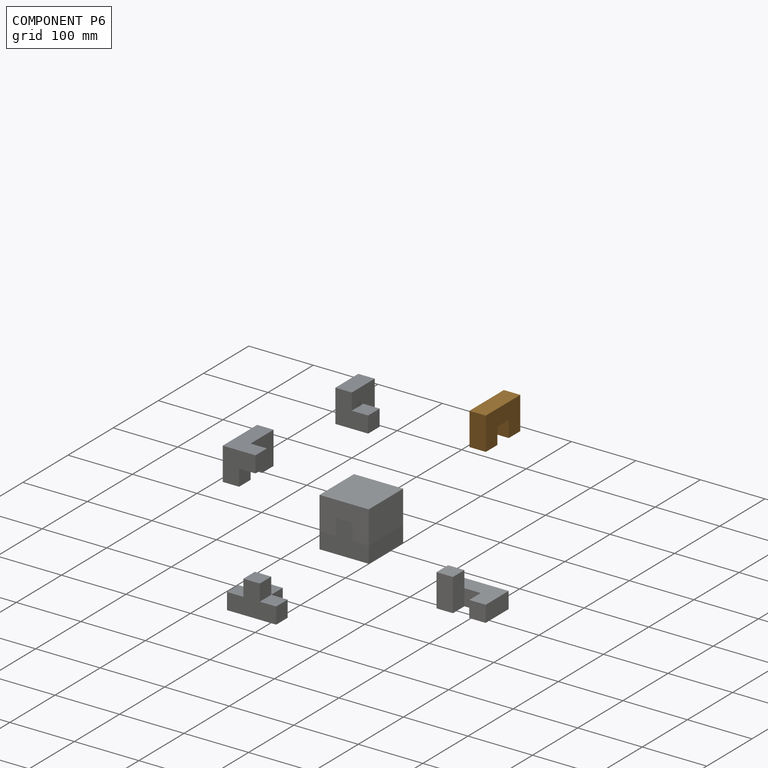
[diagram: component P6 — assembled]
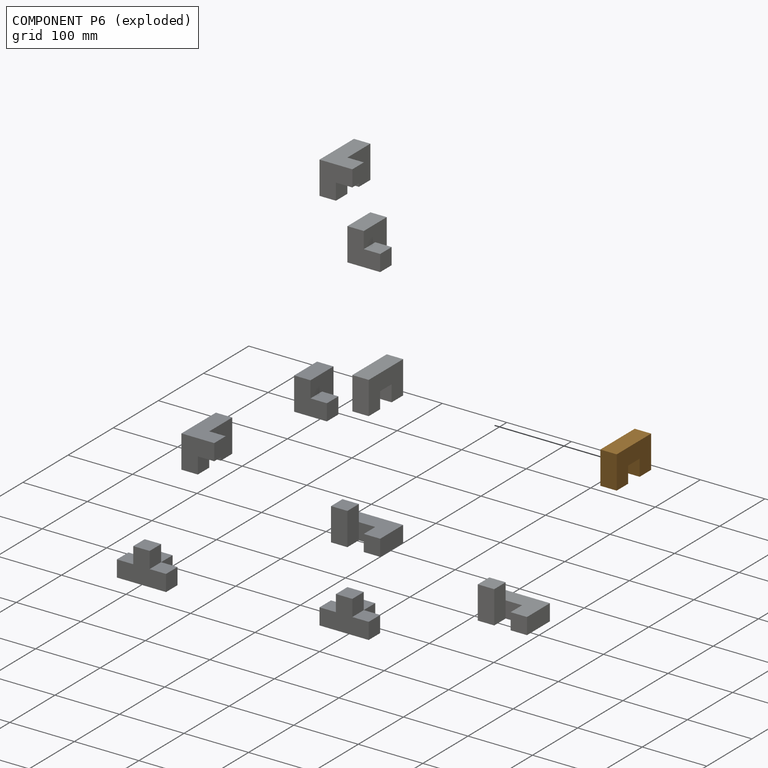
[diagram: component P6 — exploded]
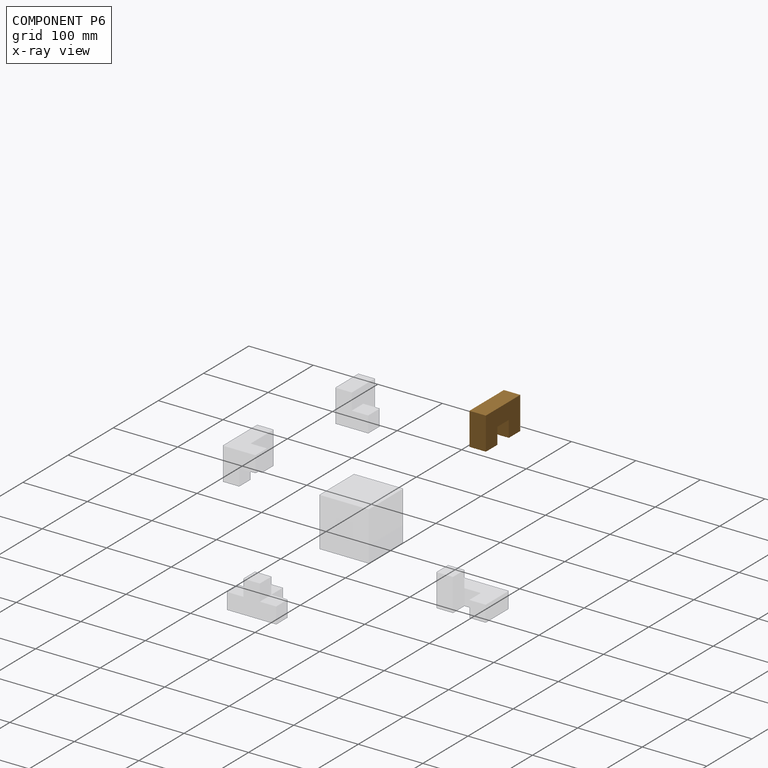
[diagram: component P6 — x-ray view]
COMPONENT P6 — geometry summary (no construction recipe available for this part):
  bounding box: 76.2 x 50.8 x 25.4 mm
  B-rep topology: 1 solid, 10 faces, 48 edges
  volume: 81935 mm^3 (83% of its bounding box)
  symmetry: 2-fold rotationally symmetric about the y axis; mirror-symmetric across its x mid-plane, z mid-plane
Held by: no mates (free).
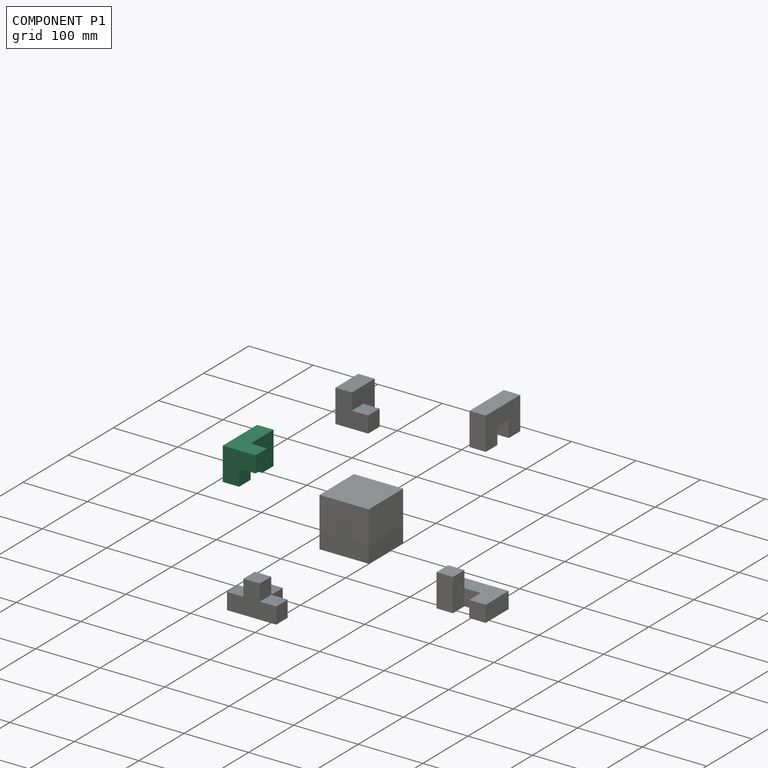
[diagram: component P1 — assembled]
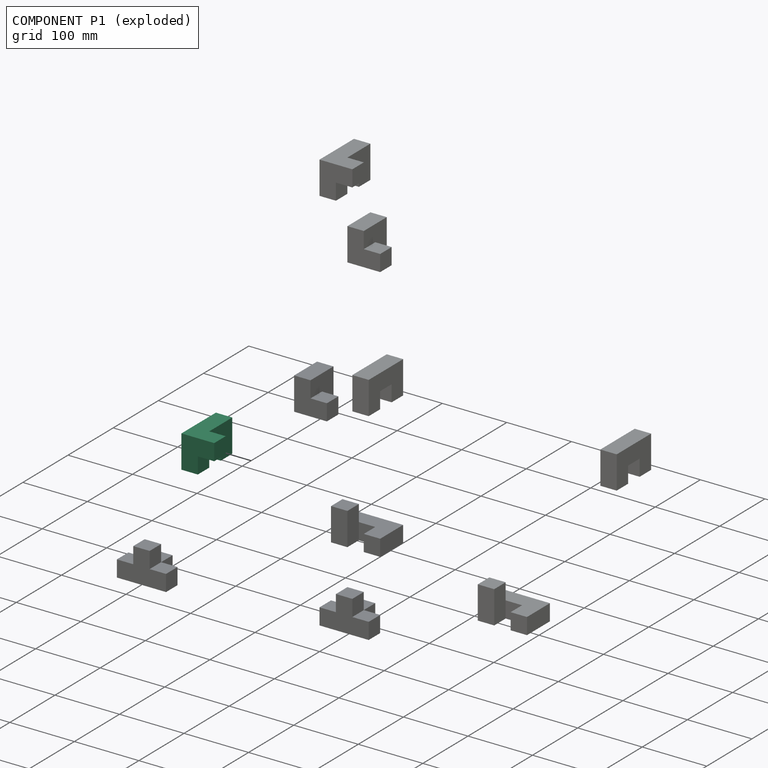
[diagram: component P1 — exploded]
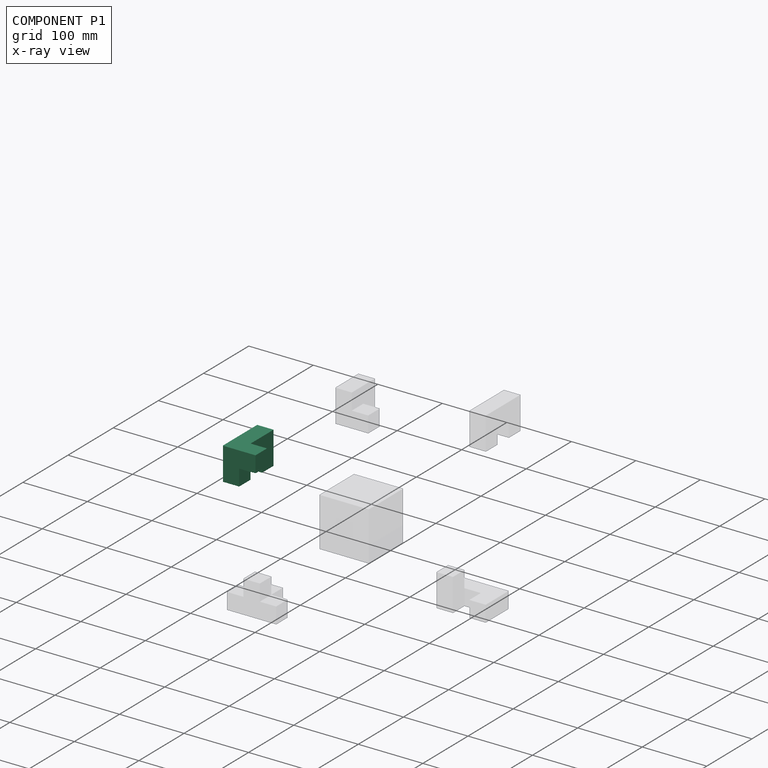
[diagram: component P1 — x-ray view]
COMPONENT P1 — same part as P0 (CADFS 00277340); its construction recipe is shown at P0.
Held by: no mates (free).
PROVENANCE & LICENSES
Assembly (occurrences, transforms, mates, per-part STEP geometry): AutoMate dataset, Zenodo record 7776208, CC0.
Construction recipes: CADFS (HuggingFace VladPyatov/CADFS, CC-BY-4.0, layered over the ABC dataset), FeatureScript reconstruction programs keyed by ABC model id.
Join: ABC meta listings map ABC model id -> Onshape documentId; within a shared document, parts are matched by geometric signature (bounding-box dims + volume at 0.1% relative tolerance, exact B-rep face/solid counts).
Verification: 8 of this assembly's 10 components carry a recipe attachment, and every attachment is mesh-verified: the CADFS STEP and the AutoMate member STEP were compared as meshes in their shared local frame (symmetric sampled-point-to-mesh distance); worst across the 8 attachments: below the mesh-comparison resolution (tessellation chordal tolerance ~0.157 mm) on a 105 mm part.
Renders: orthographic iso camera (az 35 / el 25); the floor grid conveys scale (grid pitch printed in each image; no ruler). In the exploded view each component is displaced by its stored offset vector: the offsets alone carry the explosion direction (mate normal/axis signs are not orientation cues and do not encode it), and separation distances are assigned per mate-chain, not proportionally to assembly-order depth.
